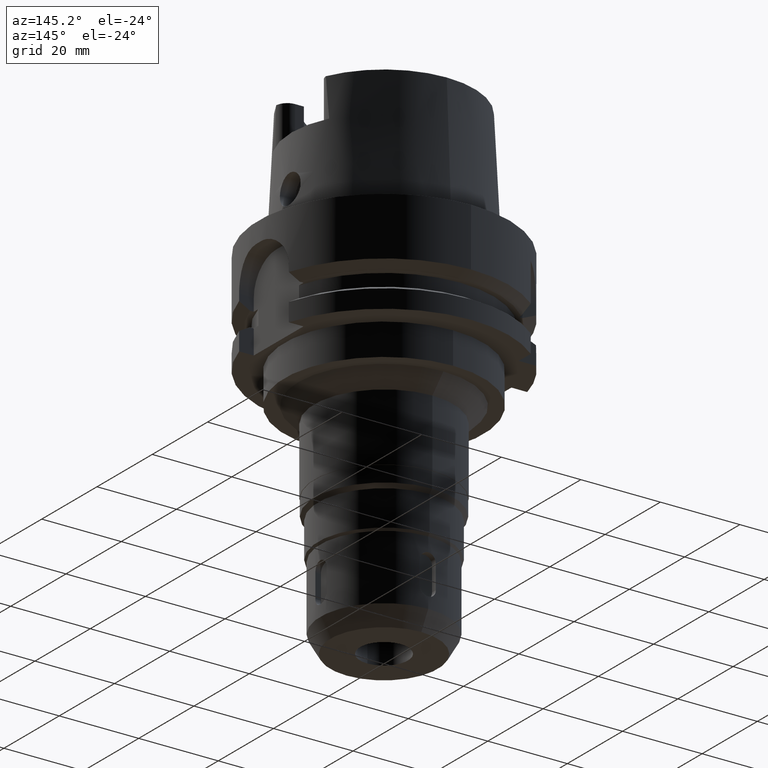
[diagram: clean part render]
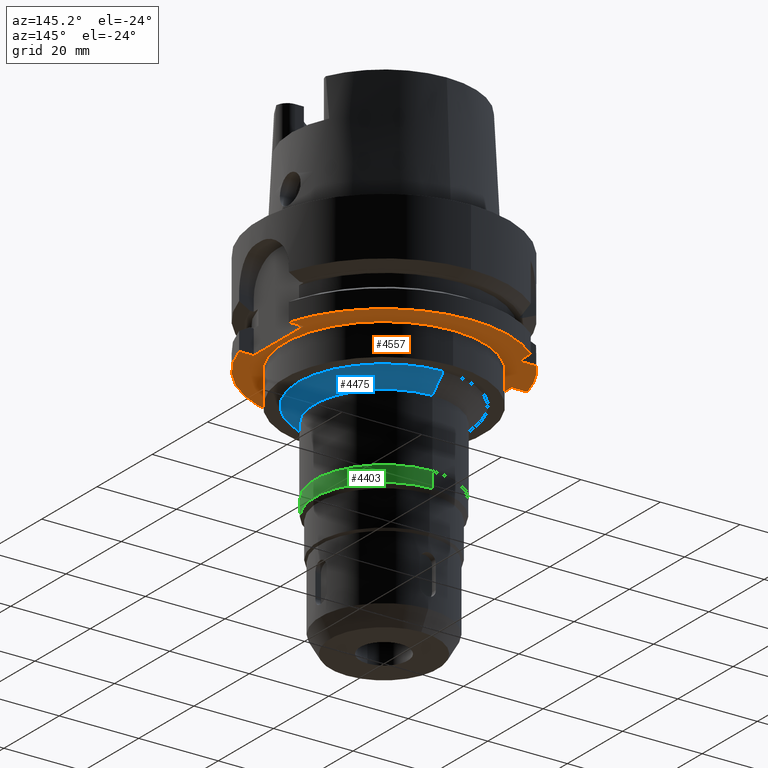
[diagram: same view with three faces highlighted in distinct colors, each labeled with its STEP entity id]
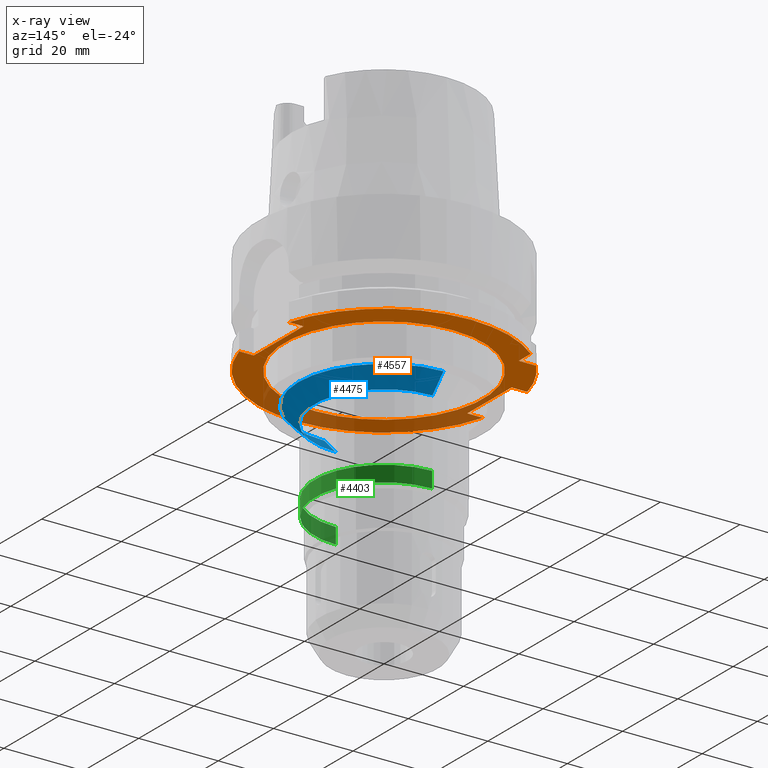
[diagram: x-ray of the same camera — body ghosted, the three highlighted faces saturated]
A machine part, auxiliary view with three faces highlighted in distinct colors.
The next image is the same camera in x-ray (body ghosted, the three faces saturated) — at least one of them is partly hidden behind the body in this view.
Their STEP definitions:

[orange] entity #4557 — the highlighted planar face has unit normal (0, 0, 1).
#1540=DIRECTION('',(-1.E0,-1.540316790609E-13,0.E0));
#1541=VECTOR('',#1540,4.336187047278E0);
#1542=CARTESIAN_POINT('',(-2.E1,2.E1,-2.6E1));
#1543=LINE('',#1542,#1541);
#1547=CARTESIAN_POINT('',(0.E0,0.E0,-2.6E1));
#1548=DIRECTION('',(0.E0,0.E0,1.E0));
#1549=DIRECTION('',(-7.725773665802E-1,6.349206349206E-1,0.E0));
#1550=AXIS2_PLACEMENT_3D('',#1547,#1548,#1549);
#1555=DIRECTION('',(-1.E0,-8.686570378871E-14,0.E0));
#1556=VECTOR('',#1555,3.967195473163E0);
#1557=CARTESIAN_POINT('',(-2.65E1,-8.E0,-2.6E1));
#1558=LINE('',#1557,#1556);
#1562=CARTESIAN_POINT('',(0.E0,0.E0,-2.6E1));
#1563=DIRECTION('',(0.E0,0.E0,1.E0));
#1564=DIRECTION('',(-9.672125547036E-1,-2.539682539683E-1,0.E0));
#1565=AXIS2_PLACEMENT_3D('',#1562,#1563,#1564);
#1570=CARTESIAN_POINT('',(0.E0,0.E0,-2.6E1));
#1571=DIRECTION('',(0.E0,0.E0,1.E0));
#1572=DIRECTION('',(0.E0,-1.E0,0.E0));
#1573=AXIS2_PLACEMENT_3D('',#1570,#1571,#1572);
#1578=DIRECTION('',(-1.E0,-6.889739586341E-14,0.E0));
#1579=VECTOR('',#1578,3.686917696248E0);
#1580=CARTESIAN_POINT('',(3.018691769625E1,-9.E0,-2.6E1));
#1581=LINE('',#1580,#1579);
#1585=DIRECTION('',(0.E0,1.E0,0.E0));
#1586=VECTOR('',#1585,1.8E1);
#1587=CARTESIAN_POINT('',(2.65E1,-9.E0,-2.6E1));
#1588=LINE('',#1587,#1586);
#1592=CARTESIAN_POINT('',(0.E0,0.E0,-2.6E1));
#1593=DIRECTION('',(0.E0,0.E0,1.E0));
#1594=DIRECTION('',(9.583148474999E-1,2.857142857143E-1,0.E0));
#1595=AXIS2_PLACEMENT_3D('',#1592,#1593,#1594);
#1600=CARTESIAN_POINT('',(0.E0,0.E0,-2.6E1));
#1601=DIRECTION('',(0.E0,0.E0,1.E0));
#1602=DIRECTION('',(0.E0,1.E0,0.E0));
#1603=AXIS2_PLACEMENT_3D('',#1600,#1601,#1602);
#1608=CARTESIAN_POINT('',(0.E0,0.E0,-2.6E1));
#1609=DIRECTION('',(0.E0,0.E0,-1.E0));
#1610=DIRECTION('',(0.E0,-1.E0,0.E0));
#1611=AXIS2_PLACEMENT_3D('',#1608,#1609,#1610);
#1616=CARTESIAN_POINT('',(0.E0,0.E0,-2.6E1));
#1617=DIRECTION('',(0.E0,0.E0,-1.E0));
#1618=DIRECTION('',(0.E0,1.E0,0.E0));
#1619=AXIS2_PLACEMENT_3D('',#1616,#1617,#1618);
#1624=DIRECTION('',(1.556703139446E-13,1.E0,0.E0));
#1625=VECTOR('',#1624,4.336187047278E0);
#1626=CARTESIAN_POINT('',(-2.E1,2.E1,-2.6E1));
#1627=LINE('',#1626,#1625);
#1645=DIRECTION('',(-1.E0,7.275179563200E-14,0.E0));
#1646=VECTOR('',#1645,3.686917696248E0);
#1647=CARTESIAN_POINT('',(3.018691769625E1,9.E0,-2.6E1));
#1648=LINE('',#1647,#1646);
#1782=DIRECTION('',(0.E0,1.E0,0.E0));
#1783=VECTOR('',#1782,1.6E1);
#1784=CARTESIAN_POINT('',(-2.65E1,-8.E0,-2.6E1));
#1785=LINE('',#1784,#1783);
#1819=DIRECTION('',(-1.E0,8.776122650818E-14,0.E0));
#1820=VECTOR('',#1819,3.967195473163E0);
#1821=CARTESIAN_POINT('',(-2.65E1,8.E0,-2.6E1));
#1822=LINE('',#1821,#1820);
#3208=CARTESIAN_POINT('',(0.E0,2.5E1,-2.6E1));
#3209=VERTEX_POINT('',#3208);
#3210=CARTESIAN_POINT('',(0.E0,-2.5E1,-2.6E1));
#3211=VERTEX_POINT('',#3210);
#3212=CARTESIAN_POINT('',(-2.E1,2.E1,-2.6E1));
#3213=CARTESIAN_POINT('',(-2.E1,2.433618704728E1,-2.6E1));
#3214=VERTEX_POINT('',#3212);
#3215=VERTEX_POINT('',#3213);
#3216=CARTESIAN_POINT('',(-2.433618704728E1,2.E1,-2.6E1));
#3217=VERTEX_POINT('',#3216);
#3218=CARTESIAN_POINT('',(-3.046719547316E1,8.E0,-2.6E1));
#3219=VERTEX_POINT('',#3218);
#3220=CARTESIAN_POINT('',(-2.65E1,8.E0,-2.6E1));
#3221=VERTEX_POINT('',#3220);
#3222=CARTESIAN_POINT('',(-2.65E1,-8.E0,-2.6E1));
#3223=VERTEX_POINT('',#3222);
#3224=CARTESIAN_POINT('',(-3.046719547316E1,-8.E0,-2.6E1));
#3225=VERTEX_POINT('',#3224);
#3226=CARTESIAN_POINT('',(-1.569039500652E-14,-3.15E1,-2.6E1));
#3227=CARTESIAN_POINT('',(3.018691769625E1,-9.E0,-2.6E1));
#3228=VERTEX_POINT('',#3226);
#3229=VERTEX_POINT('',#3227);
#3230=CARTESIAN_POINT('',(2.65E1,-9.E0,-2.6E1));
#3231=VERTEX_POINT('',#3230);
#3232=CARTESIAN_POINT('',(2.65E1,9.E0,-2.6E1));
#3233=VERTEX_POINT('',#3232);
#3234=CARTESIAN_POINT('',(3.018691769625E1,9.E0,-2.6E1));
#3235=VERTEX_POINT('',#3234);
#3236=CARTESIAN_POINT('',(0.E0,3.15E1,-2.6E1));
#3237=VERTEX_POINT('',#3236);
#4520=CARTESIAN_POINT('',(0.E0,0.E0,-2.6E1));
#4521=DIRECTION('',(0.E0,0.E0,1.E0));
#4522=DIRECTION('',(0.E0,1.E0,0.E0));
#4523=AXIS2_PLACEMENT_3D('',#4520,#4521,#4522);
#4524=PLANE('',#4523);
#4526=ORIENTED_EDGE('',*,*,#4525,.F.);
#4528=ORIENTED_EDGE('',*,*,#4527,.T.);
#4530=ORIENTED_EDGE('',*,*,#4529,.T.);
#4532=ORIENTED_EDGE('',*,*,#4531,.F.);
#4534=ORIENTED_EDGE('',*,*,#4533,.F.);
#4536=ORIENTED_EDGE('',*,*,#4535,.T.);
#4538=ORIENTED_EDGE('',*,*,#4537,.T.);
#4540=ORIENTED_EDGE('',*,*,#4539,.T.);
#4542=ORIENTED_EDGE('',*,*,#4541,.T.);
#4544=ORIENTED_EDGE('',*,*,#4543,.T.);
#4546=ORIENTED_EDGE('',*,*,#4545,.F.);
#4548=ORIENTED_EDGE('',*,*,#4547,.T.);
#4550=ORIENTED_EDGE('',*,*,#4549,.T.);
#4551=EDGE_LOOP('',(#4526,#4528,#4530,#4532,#4534,#4536,#4538,#4540,#4542,#4544,
#4546,#4548,#4550));
#4552=FACE_OUTER_BOUND('',#4551,.F.);
#4553=ORIENTED_EDGE('',*,*,#4513,.T.);
#4554=ORIENTED_EDGE('',*,*,#4502,.T.);
#4555=EDGE_LOOP('',(#4553,#4554));
#4556=FACE_BOUND('',#4555,.F.);
#1551=CIRCLE('',#1550,3.15E1);
#1566=CIRCLE('',#1565,3.15E1);
#1574=CIRCLE('',#1573,3.15E1);
#1596=CIRCLE('',#1595,3.15E1);
#1604=CIRCLE('',#1603,3.15E1);
#1612=CIRCLE('',#1611,2.5E1);
#1620=CIRCLE('',#1619,2.5E1);
#4502=EDGE_CURVE('',#3209,#3211,#1620,.T.);
#4513=EDGE_CURVE('',#3211,#3209,#1612,.T.);
#4525=EDGE_CURVE('',#3214,#3215,#1627,.T.);
#4527=EDGE_CURVE('',#3214,#3217,#1543,.T.);
#4529=EDGE_CURVE('',#3217,#3219,#1551,.T.);
#4531=EDGE_CURVE('',#3221,#3219,#1822,.T.);
#4533=EDGE_CURVE('',#3223,#3221,#1785,.T.);
#4535=EDGE_CURVE('',#3223,#3225,#1558,.T.);
#4537=EDGE_CURVE('',#3225,#3228,#1566,.T.);
#4539=EDGE_CURVE('',#3228,#3229,#1574,.T.);
#4541=EDGE_CURVE('',#3229,#3231,#1581,.T.);
#4543=EDGE_CURVE('',#3231,#3233,#1588,.T.);
#4545=EDGE_CURVE('',#3235,#3233,#1648,.T.);
#4547=EDGE_CURVE('',#3235,#3237,#1596,.T.);
#4549=EDGE_CURVE('',#3237,#3215,#1604,.T.);
#4557=ADVANCED_FACE('',(#4552,#4556),#4524,.F.);

[blue] entity #4475 — the highlighted conical surface has half-angle 45 deg.
#1464=DIRECTION('',(0.E0,7.071067811865E-1,-7.071067811865E-1));
#1465=VECTOR('',#1464,5.656854249492E0);
#1466=CARTESIAN_POINT('',(0.E0,-2.15E1,-3.4E1));
#1467=LINE('',#1466,#1465);
#1479=DIRECTION('',(0.E0,-7.071067811865E-1,-7.071067811865E-1));
#1480=VECTOR('',#1479,5.656854249492E0);
#1481=CARTESIAN_POINT('',(0.E0,2.15E1,-3.4E1));
#1482=LINE('',#1481,#1480);
#1486=CARTESIAN_POINT('',(0.E0,0.E0,-3.8E1));
#1487=DIRECTION('',(0.E0,0.E0,-1.E0));
#1488=DIRECTION('',(0.E0,1.E0,0.E0));
#1489=AXIS2_PLACEMENT_3D('',#1486,#1487,#1488);
#1518=CARTESIAN_POINT('',(0.E0,0.E0,-3.4E1));
#1519=DIRECTION('',(0.E0,0.E0,-1.E0));
#1520=DIRECTION('',(0.E0,1.E0,0.E0));
#1521=AXIS2_PLACEMENT_3D('',#1518,#1519,#1520);
#3196=CARTESIAN_POINT('',(0.E0,1.75E1,-3.8E1));
#3197=VERTEX_POINT('',#3196);
#3198=CARTESIAN_POINT('',(0.E0,-1.75E1,-3.8E1));
#3199=VERTEX_POINT('',#3198);
#3200=CARTESIAN_POINT('',(0.E0,2.15E1,-3.4E1));
#3201=VERTEX_POINT('',#3200);
#3202=CARTESIAN_POINT('',(0.E0,-2.15E1,-3.4E1));
#3203=VERTEX_POINT('',#3202);
#4463=CARTESIAN_POINT('',(0.E0,0.E0,-3.6E1));
#4464=DIRECTION('',(0.E0,0.E0,1.E0));
#4465=DIRECTION('',(0.E0,1.E0,0.E0));
#4466=AXIS2_PLACEMENT_3D('',#4463,#4464,#4465);
#4467=CONICAL_SURFACE('',#4466,1.95E1,4.5E1);
#4468=ORIENTED_EDGE('',*,*,#4453,.T.);
#4469=ORIENTED_EDGE('',*,*,#4430,.T.);
#4470=ORIENTED_EDGE('',*,*,#4457,.F.);
#4472=ORIENTED_EDGE('',*,*,#4471,.F.);
#4473=EDGE_LOOP('',(#4468,#4469,#4470,#4472));
#4474=FACE_OUTER_BOUND('',#4473,.F.);
#1490=CIRCLE('',#1489,1.75E1);
#1522=CIRCLE('',#1521,2.15E1);
#4430=EDGE_CURVE('',#3197,#3199,#1490,.T.);
#4453=EDGE_CURVE('',#3201,#3197,#1482,.T.);
#4457=EDGE_CURVE('',#3203,#3199,#1467,.T.);
#4471=EDGE_CURVE('',#3201,#3203,#1522,.T.);
#4475=ADVANCED_FACE('',(#4474),#4467,.T.);

[green] entity #4403 — the highlighted cylindrical surface (partial cylindrical patch) has radius 17.4 mm, axis along (0, 0, 1).
#1373=CARTESIAN_POINT('',(0.E0,0.E0,-5.9E1));
#1374=DIRECTION('',(0.E0,0.E0,1.E0));
#1375=DIRECTION('',(0.E0,-1.E0,0.E0));
#1376=AXIS2_PLACEMENT_3D('',#1373,#1374,#1375);
#1404=DIRECTION('',(0.E0,0.E0,-1.E0));
#1405=VECTOR('',#1404,4.E0);
#1406=CARTESIAN_POINT('',(0.E0,-1.74E1,-5.5E1));
#1407=LINE('',#1406,#1405);
#1411=DIRECTION('',(0.E0,0.E0,-1.E0));
#1412=VECTOR('',#1411,4.E0);
#1413=CARTESIAN_POINT('',(0.E0,1.74E1,-5.5E1));
#1414=LINE('',#1413,#1412);
#1442=CARTESIAN_POINT('',(0.E0,0.E0,-5.5E1));
#1443=DIRECTION('',(0.E0,0.E0,-1.E0));
#1444=DIRECTION('',(0.E0,1.E0,0.E0));
#1445=AXIS2_PLACEMENT_3D('',#1442,#1443,#1444);
#3184=CARTESIAN_POINT('',(0.E0,1.74E1,-5.9E1));
#3185=VERTEX_POINT('',#3184);
#3186=CARTESIAN_POINT('',(0.E0,-1.74E1,-5.9E1));
#3187=VERTEX_POINT('',#3186);
#3188=CARTESIAN_POINT('',(0.E0,1.74E1,-5.5E1));
#3189=VERTEX_POINT('',#3188);
#3190=CARTESIAN_POINT('',(0.E0,-1.74E1,-5.5E1));
#3191=VERTEX_POINT('',#3190);
#4391=CARTESIAN_POINT('',(0.E0,0.E0,-9.61E1));
#4392=DIRECTION('',(0.E0,0.E0,1.E0));
#4393=DIRECTION('',(0.E0,1.E0,0.E0));
#4394=AXIS2_PLACEMENT_3D('',#4391,#4392,#4393);
#4395=CYLINDRICAL_SURFACE('',#4394,1.74E1);
#4396=ORIENTED_EDGE('',*,*,#4381,.T.);
#4397=ORIENTED_EDGE('',*,*,#4358,.F.);
#4398=ORIENTED_EDGE('',*,*,#4385,.F.);
#4400=ORIENTED_EDGE('',*,*,#4399,.F.);
#4401=EDGE_LOOP('',(#4396,#4397,#4398,#4400));
#4402=FACE_OUTER_BOUND('',#4401,.F.);
#1377=CIRCLE('',#1376,1.74E1);
#1446=CIRCLE('',#1445,1.74E1);
#4358=EDGE_CURVE('',#3187,#3185,#1377,.T.);
#4381=EDGE_CURVE('',#3189,#3185,#1414,.T.);
#4385=EDGE_CURVE('',#3191,#3187,#1407,.T.);
#4399=EDGE_CURVE('',#3189,#3191,#1446,.T.);
#4403=ADVANCED_FACE('',(#4402),#4395,.T.);